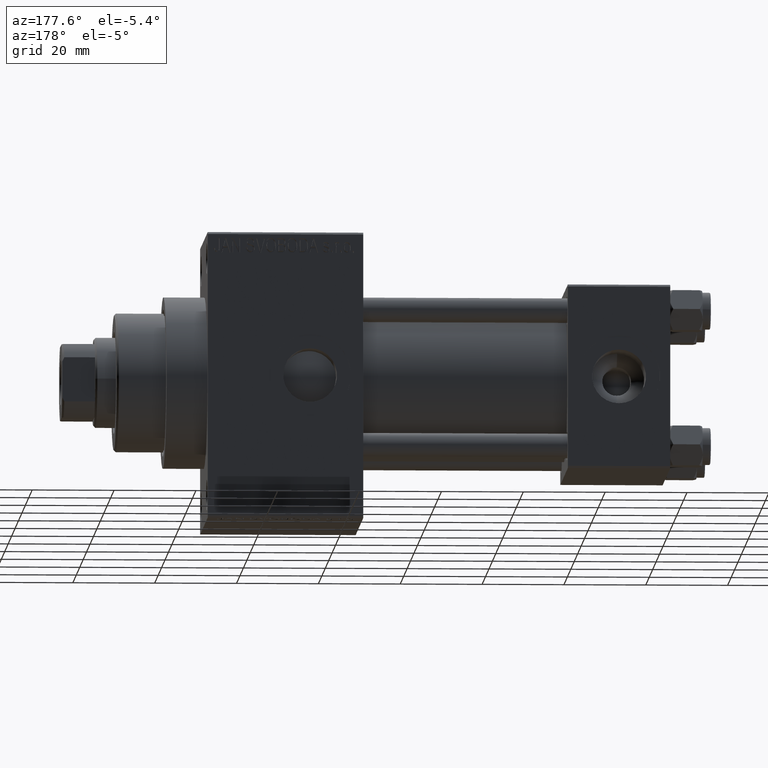
[diagram: clean part render]
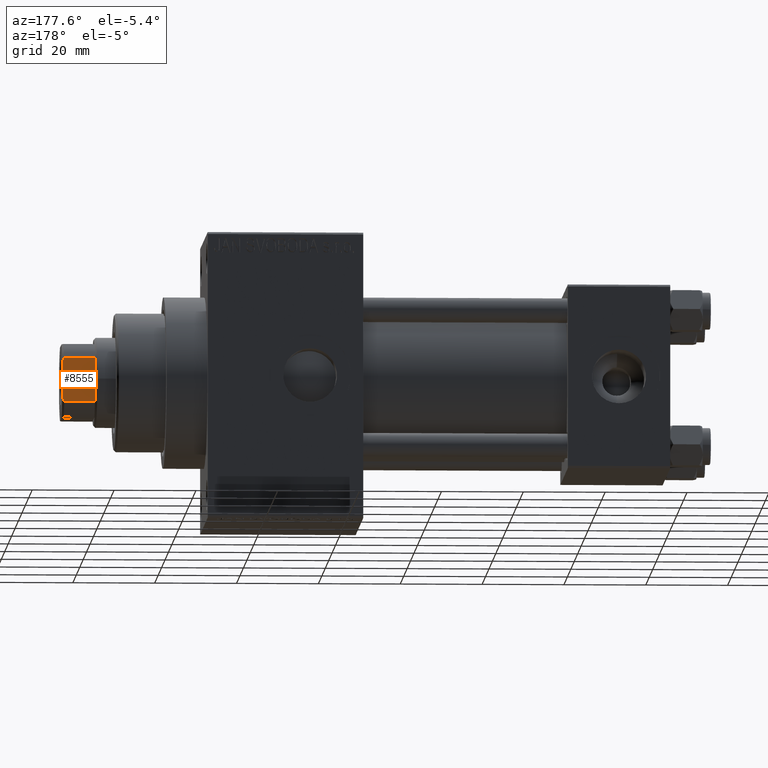
[diagram: same view with one face highlighted and labeled with its STEP entity id]
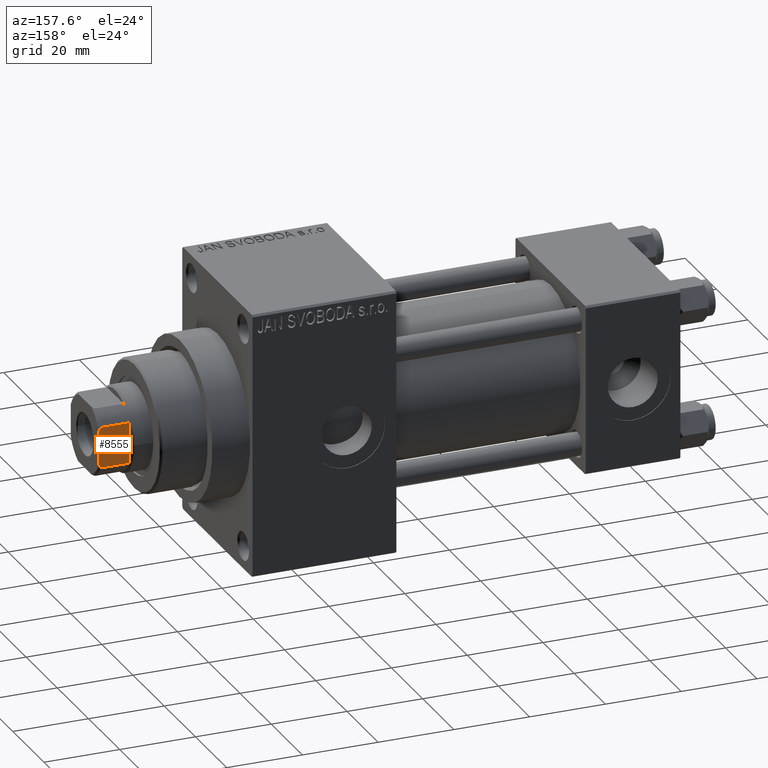
[diagram: same view with one face highlighted and labeled with its STEP entity id]
A machine part, auxiliary view. The second image highlights one B-rep face of the part: STEP entity #8555.
A second angle (auxiliary view) of the same face is appended — the face is thin or edge-on in the first view.
In plain terms, the highlighted planar face has unit normal (0, -1, -0).
Its self-contained STEP definition (entity closure, byte-faithful):
#1128 = ORIENTED_EDGE ( 'NONE', *, *, #7376, .T. ) ;
#1251 = CARTESIAN_POINT ( 'NONE',  ( -8.999999999999996447, 5.408326913195991459, -0.001000000000001000089 ) ) ;
#1491 = AXIS2_PLACEMENT_3D ( 'NONE', #16139, #23058, #5883 ) ;
#1949 = LINE ( 'NONE', #1251, #2136 ) ;
#2136 = VECTOR ( 'NONE', #15794, 1000.000000000000000 ) ;
#3499 = VERTEX_POINT ( 'NONE', #21268 ) ;
#3982 = CARTESIAN_POINT ( 'NONE',  ( -9.000000000000001776, -4.714305797500246697, 122.8450817439748448 ) ) ;
#4934 = B_SPLINE_CURVE_WITH_KNOTS ( 'NONE', 3,
 ( #18824, #40103, #18151, #29558 ),
 .UNSPECIFIED., .F., .F.,
 ( 4, 4 ),
 ( 0.000000000000000000, 0.001162453897363206236 ),
 .UNSPECIFIED. ) ;
#5883 = DIRECTION ( 'NONE',  ( -9.637352644315595243E-17, 1.000000000000000000, 0.000000000000000000 ) ) ;
#7376 = EDGE_CURVE ( 'NONE', #40643, #40642, #7905, .T. ) ;
#7905 = LINE ( 'NONE', #18853, #11356 ) ;
#8555 = ADVANCED_FACE ( 'NONE', ( #19711 ), #41908, .F. ) ;
#9494 = VECTOR ( 'NONE', #46727, 1000.000000000000000 ) ;
#9742 = VECTOR ( 'NONE', #26760, 1000.000000000000000 ) ;
#11133 = EDGE_CURVE ( 'NONE', #36914, #3499, #4934, .T. ) ;
#11356 = VECTOR ( 'NONE', #25787, 1000.000000000000000 ) ;
#13441 = CARTESIAN_POINT ( 'NONE',  ( -9.000000000000000000, -5.408326913195987018, 115.0000000000000284 ) ) ;
#13570 = LINE ( 'NONE', #25012, #9494 ) ;
#13607 = CARTESIAN_POINT ( 'NONE',  ( -9.000000000000003553, 4.358898943540662430, 123.0000000000000000 ) ) ;
#14242 = VERTEX_POINT ( 'NONE', #26196 ) ;
#15794 = DIRECTION ( 'NONE',  ( -0.000000000000000000, -0.000000000000000000, 1.000000000000000000 ) ) ;
#15808 = LINE ( 'NONE', #41805, #9742 ) ;
#16139 = CARTESIAN_POINT ( 'NONE',  ( -9.000000000000003553, 8.999999999999998224, 123.0000000000000000 ) ) ;
#17476 = VERTEX_POINT ( 'NONE', #30705 ) ;
#17485 = ORIENTED_EDGE ( 'NONE', *, *, #29751, .F. ) ;
#18151 = CARTESIAN_POINT ( 'NONE',  ( -9.000000000000003553, 5.063687070142450786, 122.6775166608139216 ) ) ;
#18824 = CARTESIAN_POINT ( 'NONE',  ( -9.000000000000003553, 4.358898943540662430, 123.0000000000000000 ) ) ;
#18853 = CARTESIAN_POINT ( 'NONE',  ( -9.000000000000000000, -5.408326913195987018, -0.001000000000001000089 ) ) ;
#19711 = FACE_OUTER_BOUND ( 'NONE', #20529, .T. ) ;
#20529 = EDGE_LOOP ( 'NONE', ( #1128, #36306, #17485, #26273, #37229, #44403 ) ) ;
#20675 = EDGE_CURVE ( 'NONE', #17476, #40643, #13570, .T. ) ;
#21268 = CARTESIAN_POINT ( 'NONE',  ( -8.999999999999996447, 5.408326913195991459, 122.5000000000000000 ) ) ;
#21313 = B_SPLINE_CURVE_WITH_KNOTS ( 'NONE', 3,
 ( #40269, #29734, #3982, #22581 ),
 .UNSPECIFIED., .F., .F.,
 ( 4, 4 ),
 ( 0.000000000000000000, 0.001162453897363199297 ),
 .UNSPECIFIED. ) ;
#22581 = CARTESIAN_POINT ( 'NONE',  ( -9.000000000000003553, -4.358898943540665094, 123.0000000000000000 ) ) ;
#23058 = DIRECTION ( 'NONE',  ( 1.000000000000000000, 9.637352644315595243E-17, -0.000000000000000000 ) ) ;
#25012 = CARTESIAN_POINT ( 'NONE',  ( -9.000000000000003553, 8.999999999999998224, 115.0000000000000000 ) ) ;
#25787 = DIRECTION ( 'NONE',  ( -0.000000000000000000, -0.000000000000000000, 1.000000000000000000 ) ) ;
#26196 = CARTESIAN_POINT ( 'NONE',  ( -9.000000000000003553, -4.358898943540665094, 123.0000000000000000 ) ) ;
#26273 = ORIENTED_EDGE ( 'NONE', *, *, #11133, .T. ) ;
#26760 = DIRECTION ( 'NONE',  ( 9.637352644315595243E-17, -1.000000000000000000, 0.000000000000000000 ) ) ;
#29390 = EDGE_CURVE ( 'NONE', #17476, #3499, #1949, .T. ) ;
#29558 = CARTESIAN_POINT ( 'NONE',  ( -8.999999999999996447, 5.408326913195991459, 122.5000000000000000 ) ) ;
#29734 = CARTESIAN_POINT ( 'NONE',  ( -9.000000000000000000, -5.063687070142446345, 122.6775166608139216 ) ) ;
#29751 = EDGE_CURVE ( 'NONE', #36914, #14242, #15808, .T. ) ;
#30705 = CARTESIAN_POINT ( 'NONE',  ( -8.999999999999996447, 5.408326913195988794, 115.0000000000000284 ) ) ;
#32877 = EDGE_CURVE ( 'NONE', #40642, #14242, #21313, .T. ) ;
#36306 = ORIENTED_EDGE ( 'NONE', *, *, #32877, .T. ) ;
#36914 = VERTEX_POINT ( 'NONE', #13607 ) ;
#37229 = ORIENTED_EDGE ( 'NONE', *, *, #29390, .F. ) ;
#40103 = CARTESIAN_POINT ( 'NONE',  ( -9.000000000000001776, 4.714305797500244921, 122.8450817439748448 ) ) ;
#40269 = CARTESIAN_POINT ( 'NONE',  ( -9.000000000000000000, -5.408326913195987018, 122.5000000000000000 ) ) ;
#40642 = VERTEX_POINT ( 'NONE', #46124 ) ;
#40643 = VERTEX_POINT ( 'NONE', #13441 ) ;
#41805 = CARTESIAN_POINT ( 'NONE',  ( -9.000000000000003553, 8.999999999999998224, 123.0000000000000000 ) ) ;
#41908 = PLANE ( 'NONE',  #1491 ) ;
#44403 = ORIENTED_EDGE ( 'NONE', *, *, #20675, .T. ) ;
#46124 = CARTESIAN_POINT ( 'NONE',  ( -9.000000000000000000, -5.408326913195987018, 122.5000000000000000 ) ) ;
#46727 = DIRECTION ( 'NONE',  ( 9.637352644315595243E-17, -1.000000000000000000, 0.000000000000000000 ) ) ;